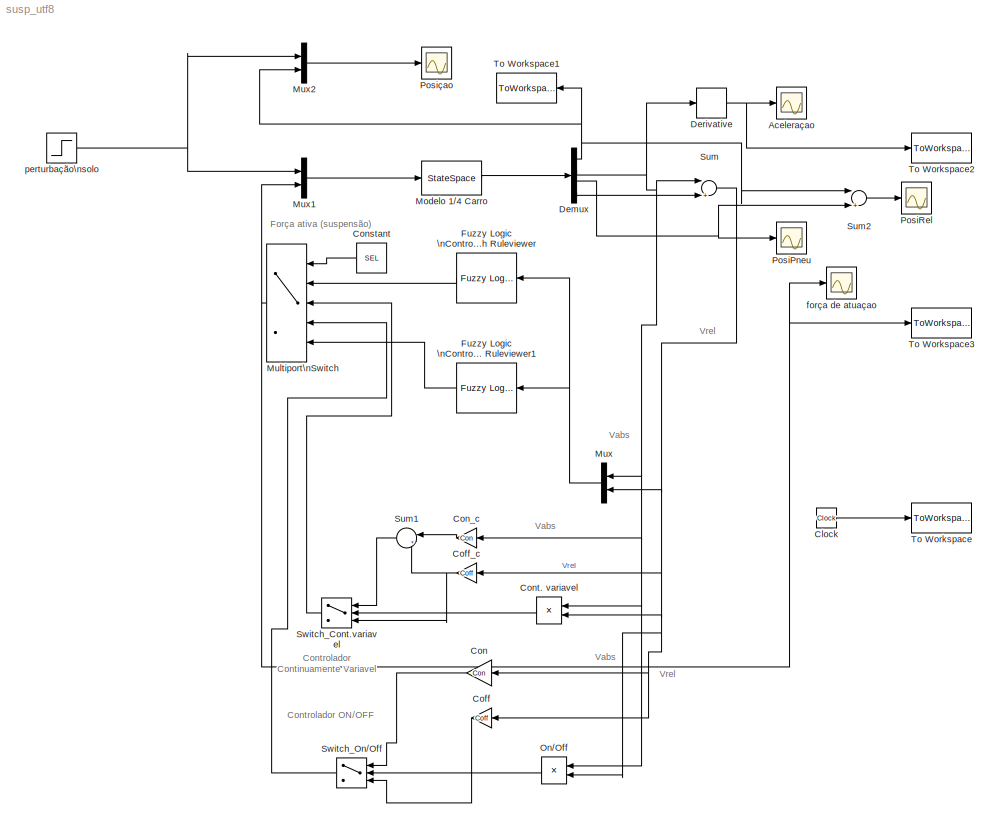
MODEL susp_utf8
KIND model
BLOCK [Scope] Aceleraçao
  DataFormat = StructureWithTime
  Floating = off
  LimitDataPoints = off
  NumInputPorts = 1
  Ports = [1]
  SID = 1
  SampleTime = 0
  SaveName = Aceleracao
  SaveToWorkspace = on
  ShowLegends = off
  TimeRange = 2
  YMin = -9
BLOCK [Clock] Clock
  SID = 2
BLOCK [Gain] Coff
  Gain = Coff
  SID = 3
BLOCK [Gain] Coff_c
  Gain = Coff
  SID = 4
BLOCK [Gain] Con
  Gain = Con
  SID = 5
BLOCK [Gain] Con_c
  Gain = Con
  SID = 6
BLOCK [Constant] Constant
  SID = 48
  Value = SEL
BLOCK [Product] Cont. variavel
  InputSameDT = off
  Ports = [2, 1]
  RndMeth = Floor
  SID = 7
BLOCK [Demux] Demux
  Ports = [1, 4]
  SID = 8
BLOCK [Derivative] Derivative
  SID = 9
BLOCK [Reference] Fuzzy Logic \nController \nwith Ruleviewer  REF=fuzblock/Fuzzy Logic \nController \nwith Ruleviewer  (lib defined in mdl_858b3b3e7478)
  Ports = [1, 1]
  SID = 34
  SourceBlock = fuzblock/Fuzzy Logic \nController \nwith Ruleviewer
  SourceType = FIS
  Ts = 2
  fismatrix = fis2
BLOCK [Reference] Fuzzy Logic \nController \nwith Ruleviewer1  REF=fuzblock/Fuzzy Logic \nController \nwith Ruleviewer  (lib defined in mdl_858b3b3e7478)
  Ports = [1, 1]
  SID = 50
  SourceBlock = fuzblock/Fuzzy Logic \nController \nwith Ruleviewer
  SourceType = FIS
  Ts = 2
  fismatrix = fis3
BLOCK [StateSpace] Modelo 1//4 Carro
  A = A
  B = B
  C = C
  D = D
  SID = 11
  X0 = [0 0 0 0]
BLOCK [MultiPortSwitch] Multiport\nSwitch
  InputSameDT = off
  Inputs = 4
  Ports = [5, 1]
  SID = 36
  SaturateOnIntegerOverflow = off
BLOCK [Mux] Mux
  DisplayOption = bar
  Inputs = 2
  Ports = [2, 1]
  SID = 12
BLOCK [Mux] Mux1
  DisplayOption = bar
  Inputs = 2
  Ports = [2, 1]
  SID = 13
BLOCK [Mux] Mux2
  DisplayOption = bar
  Inputs = 2
  Ports = [2, 1]
  SID = 46
BLOCK [Product] On//Off
  InputSameDT = off
  Ports = [2, 1]
  RndMeth = Floor
  SID = 14
BLOCK [Scope] PosiPneu
  DataFormat = StructureWithTime
  Floating = off
  NumInputPorts = 1
  Ports = [1]
  SID = 38
  SampleTime = 0
  SaveName = posicao_chassis1
  SaveToWorkspace = on
  ShowLegends = off
  TimeRange = 2
  YMax = 0.0875
  YMin = 0.0375
BLOCK [Scope] PosiRel
  DataFormat = StructureWithTime
  Floating = off
  LimitDataPoints = off
  NumInputPorts = 1
  Ports = [1]
  SID = 40
  SampleTime = 0
  SaveName = posicao_chassis2
  SaveToWorkspace = on
  ShowLegends = off
  TimeRange = 2
  YMax = 0.01
  YMin = -0.17
BLOCK [Scope] Posiçao
  DataFormat = StructureWithTime
  Floating = off
  LimitDataPoints = off
  NumInputPorts = 1
  Ports = [1]
  SID = 15
  SampleTime = 0
  SaveName = posicao_chassis
  SaveToWorkspace = on
  ShowLegends = off
  TimeRange = 1
  YMax = 0.05
  YMin = 0.036
BLOCK [Sum] Sum
  InputSameDT = off
  Inputs = |+-
  OutDataTypeStr = Inherit: Inherit via internal rule
  Ports = [2, 1]
  SID = 16
BLOCK [Sum] Sum1
  IconShape = round
  InputSameDT = off
  Inputs = |++
  OutDataTypeStr = Inherit: Inherit via internal rule
  Ports = [2, 1]
  SID = 17
BLOCK [Sum] Sum2
  InputSameDT = off
  Inputs = |+-
  OutDataTypeStr = Inherit: Inherit via internal rule
  Ports = [2, 1]
  SID = 39
BLOCK [Switch] Switch_Cont.variavel
  InputSameDT = off
  SID = 18
BLOCK [Switch] Switch_On//Off
  InputSameDT = off
  SID = 19
BLOCK [ToWorkspace] To Workspace
  MaxDataPoints = inf
  Ports = [1]
  SID = 20
  SampleTime = -1
  VariableName = tempo
BLOCK [ToWorkspace] To Workspace1
  MaxDataPoints = inf
  Ports = [1]
  SID = 21
  SampleTime = -1
  VariableName = pos
BLOCK [ToWorkspace] To Workspace2
  MaxDataPoints = inf
  Ports = [1]
  SID = 22
  SampleTime = -1
  VariableName = acel
BLOCK [ToWorkspace] To Workspace3
  MaxDataPoints = inf
  Ports = [1]
  SID = 23
  SampleTime = -1
  VariableName = forca
BLOCK [Scope] força de atuaçao
  DataFormat = StructureWithTime
  Floating = off
  NumInputPorts = 1
  Ports = [1]
  SID = 24
  SampleTime = 0
  SaveName = Aceleraao1
  ShowLegends = off
  TimeRange = 2
  YMax = 1
  YMin = -2
BLOCK [Step] perturbação\nsolo
  After = 0.05
  SID = 25
  SampleTime = 0
  Time = 0
  VectorParams1D = off
  ZeroCross = off
ANNOTATION (root): Controlador ON/OFF
ANNOTATION (root): Controlador\nContinuamente Variavel
ANNOTATION (root): Força ativa (suspensão)
ANNOTATION (root): Vabs
ANNOTATION (root): Vrel
LINE Clock:1 -> To Workspace:1
LINE Coff:1 -> Switch_On//Off:3
NET Coff_c:1 -> Sum1:2, Switch_Cont.variavel:3
LINE Con:1 -> Switch_On//Off:1
LINE Con_c:1 -> Sum1:1
LINE Constant:1 -> Multiport\nSwitch:1
LINE Cont. variavel:1 -> Switch_Cont.variavel:2
NET Demux:1 -> Mux2:2, Sum2:1, To Workspace1:1
NET Demux:2 -> Con_c:1, Cont. variavel:1, Derivative:1, Mux:1, On//Off:1, Sum:1
NET Demux:3 -> PosiPneu:1, Sum2:2
LINE Demux:4 -> Sum:2
NET Derivative:1 -> Aceleraçao:1, To Workspace2:1
LINE Fuzzy Logic \nController \nwith Ruleviewer1:1 -> Multiport\nSwitch:5
LINE Fuzzy Logic \nController \nwith Ruleviewer:1 -> Multiport\nSwitch:2
LINE Modelo 1//4 Carro:1 -> Demux:1
NET Multiport\nSwitch:1 -> Mux1:2, To Workspace3:1, força de atuaçao:1
LINE Mux1:1 -> Modelo 1//4 Carro:1
LINE Mux2:1 -> Posiçao:1
NET Mux:1 -> Fuzzy Logic \nController \nwith Ruleviewer1:1, Fuzzy Logic \nController \nwith Ruleviewer:1
LINE On//Off:1 -> Switch_On//Off:2
LINE Sum1:1 -> Switch_Cont.variavel:1
LINE Sum2:1 -> PosiRel:1
NET Sum:1 -> Coff:1, Coff_c:1, Con:1, Cont. variavel:2, Mux:2, On//Off:2
LINE Switch_Cont.variavel:1 -> Multiport\nSwitch:3
LINE Switch_On//Off:1 -> Multiport\nSwitch:4
NET perturbação\nsolo:1 -> Mux1:1, Mux2:1
note: NET lines group one-source signal fan-out (src -> all destinations, sorted); 1:1 wires keep LINE
